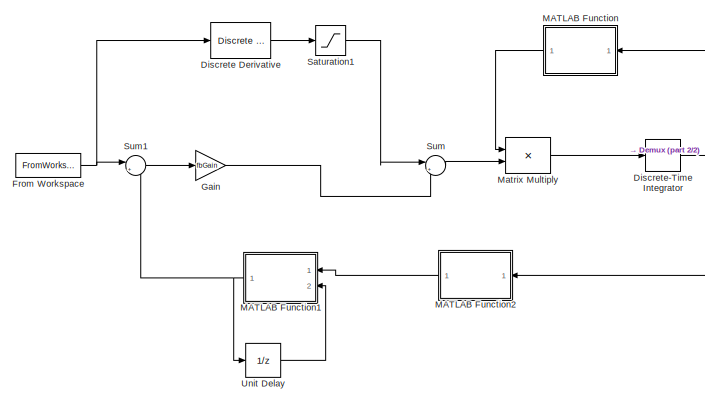
[diagram: root canvas - part 1/2, left side, full height]
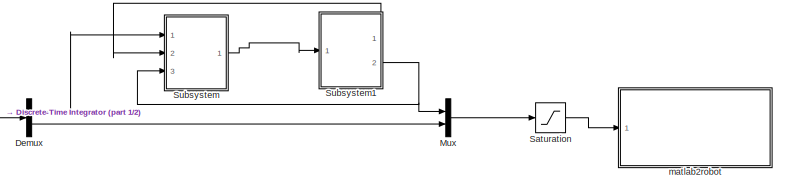
[diagram: root canvas - part 2/2, middle right region]
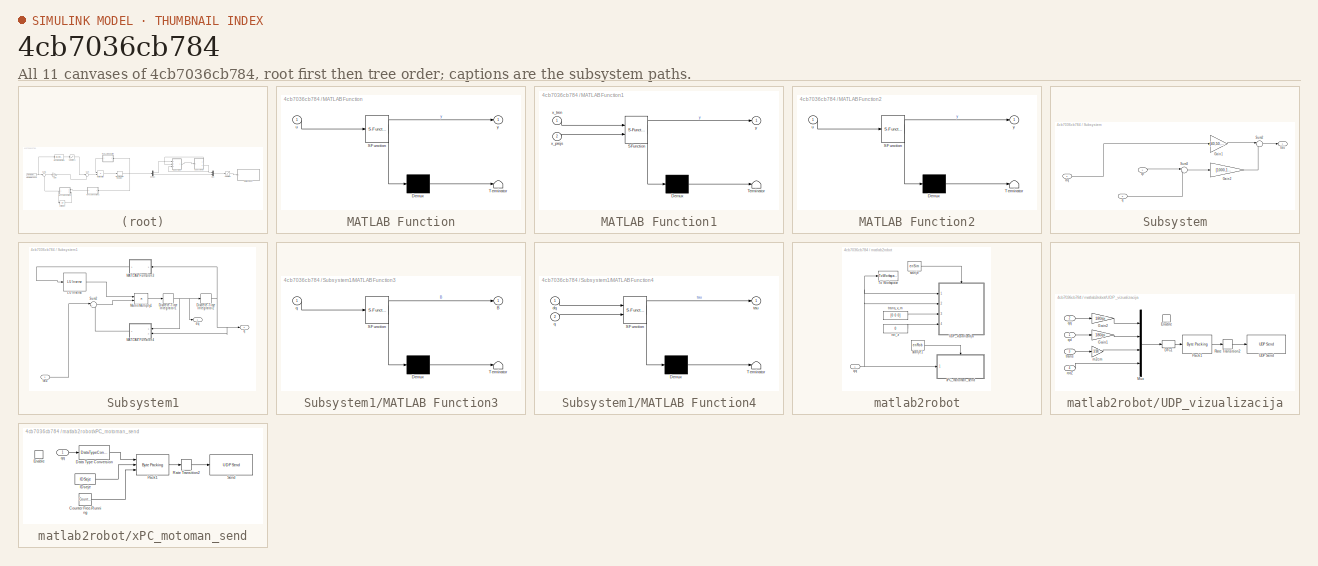
[diagram: thumbnail index - all 11 canvases of the model, root first then tree order]
MODEL slx_4cb7036cb784
KIND model
CONFIG AbsTol = auto
CONFIG EnableMultiTasking = on
CONFIG FixedStep = auto
CONFIG MaxStep = auto
CONFIG MinStep = auto
CONFIG RelTol = 1e-3
CONFIG SampleTimeConstraint = Unconstrained
CONFIG Solver = ode45
CONFIG SolverName = ode45
CONFIG StartTime = 0.0
CONFIG StopTime = 10.0
BLOCK [Demux] Demux
  DisplayOption = bar
  Outputs = 2
  Ports = [1, 2]
BLOCK [Reference] Discrete Derivative  REF=simulink/Discrete/Discrete Derivative
  Ports = [1, 1]
  SourceBlock = simulink/Discrete/Discrete Derivative
  SourceProductBaseCode = SL
  SourceProductName = Simulink
  SourceType = Discrete Derivative
BLOCK [DiscreteIntegrator] Discrete-Time Integrator
  ICPrevOutput = DiscIntNeverNeededParam
  ICPrevScaledInput = DiscIntNeverNeededParam
  InitialCondition = q0
  InitialConditionSetting = Auto
  Ports = [1, 1]
  SampleTime = dT
BLOCK [FromWorkspace] From Workspace
  SampleTime = 0
  VariableName = xTrajec
  ZeroCross = on
BLOCK [Gain] Gain
  Gain = fbGain
  OutDataTypeStr = Inherit: Inherit via internal rule
  ParamDataTypeStr = Inherit: Inherit via internal rule
  SaturateOnIntegerOverflow = off
BLOCK [SubSystem] MATLAB Function
  ErrorFcn = Stateflow.Translate.translate
  PermitHierarchicalResolution = ExplicitOnly
  Ports = [1, 1]
  RequestExecContextInheritance = off
  SFBlockType = MATLAB Function
  TreatAsAtomicUnit = on
BLOCK [Demux] MATLAB Function/ Demux 
  Outputs = 1
  Ports = [1, 1]
BLOCK [S-Function] MATLAB Function/ SFunction 
  EnableBusSupport = on
  FunctionName = sf_sfun
  PortCounts = [1 2]
  Ports = [1, 2]
  SFcnIsStateOwnerBlock = off
  SFunctionDeploymentMode = off
  Tag = Stateflow S-Function 2
BLOCK [Terminator] MATLAB Function/ Terminator 
BLOCK [Inport] MATLAB Function/u
  IconDisplay = Port number
BLOCK [Outport] MATLAB Function/y
  IconDisplay = Port number
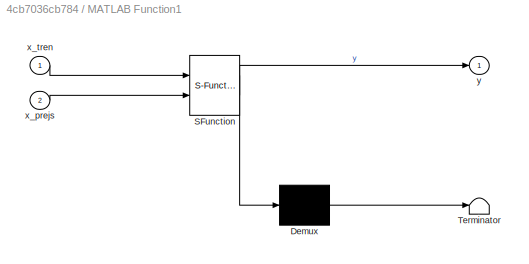
BLOCK [SubSystem] MATLAB Function1
  ErrorFcn = Stateflow.Translate.translate
  PermitHierarchicalResolution = ExplicitOnly
  Ports = [2, 1]
  RequestExecContextInheritance = off
  SFBlockType = MATLAB Function
  TreatAsAtomicUnit = on
BLOCK [Demux] MATLAB Function1/ Demux 
  Outputs = 1
  Ports = [1, 1]
BLOCK [S-Function] MATLAB Function1/ SFunction 
  EnableBusSupport = on
  FunctionName = sf_sfun
  PortCounts = [2 2]
  Ports = [2, 2]
  SFcnIsStateOwnerBlock = off
  SFunctionDeploymentMode = off
  Tag = Stateflow S-Function 1
BLOCK [Terminator] MATLAB Function1/ Terminator 
BLOCK [Inport] MATLAB Function1/x_prejs
  IconDisplay = Port number
  Port = 2
BLOCK [Inport] MATLAB Function1/x_tren
  IconDisplay = Port number
BLOCK [Outport] MATLAB Function1/y
  IconDisplay = Port number
BLOCK [SubSystem] MATLAB Function2
  ErrorFcn = Stateflow.Translate.translate
  PermitHierarchicalResolution = ExplicitOnly
  Ports = [1, 1]
  RequestExecContextInheritance = off
  SFBlockType = MATLAB Function
  TreatAsAtomicUnit = on
BLOCK [Demux] MATLAB Function2/ Demux 
  Outputs = 1
  Ports = [1, 1]
BLOCK [S-Function] MATLAB Function2/ SFunction 
  EnableBusSupport = on
  FunctionName = sf_sfun
  PortCounts = [1 2]
  Ports = [1, 2]
  SFcnIsStateOwnerBlock = off
  SFunctionDeploymentMode = off
  Tag = Stateflow S-Function 3
BLOCK [Terminator] MATLAB Function2/ Terminator 
BLOCK [Inport] MATLAB Function2/u
  IconDisplay = Port number
BLOCK [Outport] MATLAB Function2/y
  IconDisplay = Port number
BLOCK [Product] Matrix Multiply
  InputSameDT = off
  Multiplication = Matrix(*)
  OutDataTypeStr = Inherit: Inherit via internal rule
  Ports = [2, 1]
  RndMeth = Floor
  SaturateOnIntegerOverflow = off
BLOCK [Mux] Mux
  DisplayOption = bar
  Inputs = 2
  Ports = [2, 1]
BLOCK [Saturate] Saturation
  InputPortMap = u0
  LowerLimit = ([-94.5, -40, -75, -160, -120, -180]+5)*pi/180
  Ports = [1, 1]
  UpperLimit = ([94.5, 75, 45, 160, 120 180]-5)*pi/180
BLOCK [Saturate] Saturation1
  InputPortMap = u0
  Ports = [1, 1]
BLOCK [SubSystem] Subsystem
  Ports = [3, 1]
  RequestExecContextInheritance = off
BLOCK [Gain] Subsystem/Gain1
  Gain = [40,50,5]
  OutDataTypeStr = Inherit: Inherit via internal rule
  ParamDataTypeStr = Inherit: Inherit via internal rule
  SaturateOnIntegerOverflow = off
BLOCK [Gain] Subsystem/Gain2
  Gain = [1000,1500,100]
  OutDataTypeStr = Inherit: Inherit via internal rule
  ParamDataTypeStr = Inherit: Inherit via internal rule
  SaturateOnIntegerOverflow = off
BLOCK [Sum] Subsystem/Sum2
  IconShape = round
  InputSameDT = off
  Inputs = |-+
  OutDataTypeStr = Inherit: Inherit via internal rule
  Ports = [2, 1]
  SaturateOnIntegerOverflow = off
BLOCK [Sum] Subsystem/Sum3
  IconShape = round
  InputSameDT = off
  Inputs = |+-
  OutDataTypeStr = Inherit: Inherit via internal rule
  Ports = [2, 1]
  SaturateOnIntegerOverflow = off
BLOCK [Inport] Subsystem/dq 
  IconDisplay = Port number
  Port = 2
BLOCK [Inport] Subsystem/q
  IconDisplay = Port number
  Port = 3
BLOCK [Inport] Subsystem/qr
  IconDisplay = Port number
BLOCK [Outport] Subsystem/tau 
  IconDisplay = Port number
BLOCK [SubSystem] Subsystem1
  Ports = [1, 2]
  RequestExecContextInheritance = off
BLOCK [Reference] Subsystem1/ LU Inverse  REF=dspinverses/ LU Inverse
  Ports = [1, 1]
  SourceBlock = dspinverses/ LU Inverse
  SourceProductBaseCode = DS
  SourceProductName = DSP System Toolbox
  SourceType = LU Inverse
BLOCK [DiscreteIntegrator] Subsystem1/Discrete-Time Integrator1
  ICPrevOutput = DiscIntNeverNeededParam
  ICPrevScaledInput = DiscIntNeverNeededParam
  InitialCondition = [0 0 0]
  InitialConditionSetting = Auto
  Ports = [1, 1]
  SampleTime = dT
BLOCK [DiscreteIntegrator] Subsystem1/Discrete-Time Integrator2
  ICPrevOutput = DiscIntNeverNeededParam
  ICPrevScaledInput = DiscIntNeverNeededParam
  InitialCondition = q0(1:3)
  InitialConditionSetting = Auto
  Ports = [1, 1]
  SampleTime = dT
BLOCK [SubSystem] Subsystem1/MATLAB Function3
  ErrorFcn = Stateflow.Translate.translate
  PermitHierarchicalResolution = ExplicitOnly
  Ports = [1, 1]
  RequestExecContextInheritance = off
  SFBlockType = MATLAB Function
  TreatAsAtomicUnit = on
BLOCK [Demux] Subsystem1/MATLAB Function3/ Demux 
  Outputs = 1
  Ports = [1, 1]
BLOCK [S-Function] Subsystem1/MATLAB Function3/ SFunction 
  EnableBusSupport = on
  FunctionName = sf_sfun
  PortCounts = [1 2]
  Ports = [1, 2]
  SFcnIsStateOwnerBlock = off
  SFunctionDeploymentMode = off
  Tag = Stateflow S-Function 4
BLOCK [Terminator] Subsystem1/MATLAB Function3/ Terminator 
BLOCK [Outport] Subsystem1/MATLAB Function3/B
  IconDisplay = Port number
BLOCK [Inport] Subsystem1/MATLAB Function3/q
  IconDisplay = Port number
BLOCK [SubSystem] Subsystem1/MATLAB Function4
  ErrorFcn = Stateflow.Translate.translate
  PermitHierarchicalResolution = ExplicitOnly
  Ports = [2, 1]
  RequestExecContextInheritance = off
  SFBlockType = MATLAB Function
  TreatAsAtomicUnit = on
BLOCK [Demux] Subsystem1/MATLAB Function4/ Demux 
  Outputs = 1
  Ports = [1, 1]
BLOCK [S-Function] Subsystem1/MATLAB Function4/ SFunction 
  EnableBusSupport = on
  FunctionName = sf_sfun
  PortCounts = [2 2]
  Ports = [2, 2]
  SFcnIsStateOwnerBlock = off
  SFunctionDeploymentMode = off
  Tag = Stateflow S-Function 5
BLOCK [Terminator] Subsystem1/MATLAB Function4/ Terminator 
BLOCK [Inport] Subsystem1/MATLAB Function4/dq
  IconDisplay = Port number
BLOCK [Inport] Subsystem1/MATLAB Function4/q
  IconDisplay = Port number
  Port = 2
BLOCK [Outport] Subsystem1/MATLAB Function4/tau
  IconDisplay = Port number
BLOCK [Product] Subsystem1/Matrix Multiply1
  InputSameDT = off
  Multiplication = Matrix(*)
  OutDataTypeStr = Inherit: Inherit via internal rule
  Ports = [2, 1]
  RndMeth = Floor
  SaturateOnIntegerOverflow = off
BLOCK [Sum] Subsystem1/Sum2
  IconShape = round
  InputSameDT = off
  Inputs = |+-
  OutDataTypeStr = Inherit: Inherit via internal rule
  Ports = [2, 1]
  SaturateOnIntegerOverflow = off
BLOCK [Outport] Subsystem1/dq
  IconDisplay = Port number
BLOCK [Outport] Subsystem1/q
  IconDisplay = Port number
  Port = 2
BLOCK [Inport] Subsystem1/tau
  IconDisplay = Port number
BLOCK [Sum] Sum
  IconShape = round
  InputSameDT = off
  Inputs = |++
  OutDataTypeStr = Inherit: Inherit via internal rule
  Ports = [2, 1]
  SaturateOnIntegerOverflow = off
BLOCK [Sum] Sum1
  IconShape = round
  InputSameDT = off
  Inputs = |+-
  OutDataTypeStr = Inherit: Inherit via internal rule
  Ports = [2, 1]
  SaturateOnIntegerOverflow = off
BLOCK [UnitDelay] Unit Delay
  HasFrameUpgradeWarning = on
  InitialCondition = q2ZYXeul(q0)
  SampleTime = -1
BLOCK [SubSystem] matlab2robot
  Ports = [1]
  RequestExecContextInheritance = off
BLOCK [ToWorkspace] matlab2robot/To Workspace
  MaxDataPoints = inf
  Ports = [1]
  SampleTime = -1
  VariableName = qq
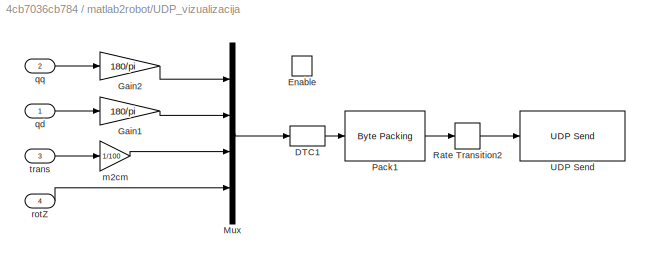
BLOCK [SubSystem] matlab2robot/UDP_vizualizacija
  Ports = [4, 0, 1]
  RequestExecContextInheritance = off
BLOCK [DataTypeConversion] matlab2robot/UDP_vizualizacija/DTC1
  OutDataTypeStr = single
  RndMeth = Floor
  SaturateOnIntegerOverflow = off
BLOCK [EnablePort] matlab2robot/UDP_vizualizacija/Enable
  Ports = []
  StatesWhenEnabling = reset
BLOCK [Gain] matlab2robot/UDP_vizualizacija/Gain1
  Gain = 180/pi
  OutDataTypeStr = Inherit: Inherit via internal rule
  ParamDataTypeStr = Inherit: Inherit via internal rule
  SaturateOnIntegerOverflow = off
BLOCK [Gain] matlab2robot/UDP_vizualizacija/Gain2
  Gain = 180/pi
  OutDataTypeStr = Inherit: Inherit via internal rule
  ParamDataTypeStr = Inherit: Inherit via internal rule
  SaturateOnIntegerOverflow = off
BLOCK [Mux] matlab2robot/UDP_vizualizacija/Mux
  DisplayOption = bar
  Ports = [4, 1]
BLOCK [Reference] matlab2robot/UDP_vizualizacija/Pack1  REF=xpcutilitieslib/Byte Packing 
  Ports = [1, 1]
  SourceBlock = xpcutilitieslib/Byte Packing
  SourceProductBaseCode = XP
  SourceProductName = Simulink Real-Time
  SourceType = xpcbytepacking
BLOCK [RateTransition] matlab2robot/UDP_vizualizacija/Rate Transition2
BLOCK [Reference] matlab2robot/UDP_vizualizacija/UDP Send  REF=dspnetwork/UDP Send
  Ports = [1]
  SourceBlock = dspnetwork/UDP Send
  SourceProductBaseCode = SL
  SourceProductName = Simulink
  SourceType = UDP Send
BLOCK [Gain] matlab2robot/UDP_vizualizacija/m2cm
  Gain = 1/100
  OutDataTypeStr = Inherit: Inherit via internal rule
  ParamDataTypeStr = Inherit: Inherit via internal rule
  SaturateOnIntegerOverflow = off
BLOCK [Inport] matlab2robot/UDP_vizualizacija/qd
  IconDisplay = Port number
BLOCK [Inport] matlab2robot/UDP_vizualizacija/qq
  IconDisplay = Port number
  Port = 2
BLOCK [Inport] matlab2robot/UDP_vizualizacija/rotZ
  IconDisplay = Port number
  Port = 4
BLOCK [Inport] matlab2robot/UDP_vizualizacija/trans
  IconDisplay = Port number
  Port = 3
BLOCK [Inport] matlab2robot/qq
  IconDisplay = Port number
BLOCK [Constant] matlab2robot/rot_z
  Value = 0
BLOCK [Constant] matlab2robot/stanje
  SampleTime = dT
  Value = enSim
BLOCK [Constant] matlab2robot/stanje1
  SampleTime = dT
  Value = enRob
BLOCK [Constant] matlab2robot/trans_v_m
  Value = [0 0 0]
BLOCK [SubSystem] matlab2robot/xPC_motoman_send
  Ports = [1, 0, 1]
  RequestExecContextInheritance = off
BLOCK [Reference] matlab2robot/xPC_motoman_send/Counter Free-Running  REF=simulink/Sources/Counter
Free-Running
  Ports = [0, 1]
  SourceBlock = simulink/Sources/Counter\nFree-Running
  SourceProductBaseCode = SL
  SourceProductName = Simulink
  SourceType = Counter Free-Running
BLOCK [DataTypeConversion] matlab2robot/xPC_motoman_send/Data Type Conversion
  OutDataTypeStr = double
  RndMeth = Floor
  SampleTime = dT
  SaturateOnIntegerOverflow = off
BLOCK [EnablePort] matlab2robot/xPC_motoman_send/Enable
  Ports = []
  StatesWhenEnabling = reset
BLOCK [Constant] matlab2robot/xPC_motoman_send/IDseje
  SampleTime = dT
  Value = IDSeje
BLOCK [Reference] matlab2robot/xPC_motoman_send/Pack1  REF=xpcutilitieslib/Byte Packing 
  Ports = [3, 1]
  SourceBlock = xpcutilitieslib/Byte Packing
  SourceProductBaseCode = XP
  SourceProductName = Simulink Real-Time
  SourceType = xpcbytepacking
BLOCK [RateTransition] matlab2robot/xPC_motoman_send/Rate Transition2
BLOCK [Reference] matlab2robot/xPC_motoman_send/Send  REF=dspnetwork/UDP Send
  Ports = [1]
  SourceBlock = dspnetwork/UDP Send
  SourceProductBaseCode = SL
  SourceProductName = Simulink
  SourceType = UDP Send
BLOCK [Inport] matlab2robot/xPC_motoman_send/qq
  IconDisplay = Port number
LINE Demux:1 -> Subsystem:1
LINE Demux:2 -> Mux:2
LINE Discrete Derivative:1 -> Saturation1:1
NET Discrete-Time Integrator:1 -> Demux:1, MATLAB Function2:1, MATLAB Function:1
NET From Workspace:1 -> Discrete Derivative:1, Sum1:1
LINE Gain:1 -> Sum:2
NET MATLAB Function1:1 -> Sum1:2, Unit Delay:1
LINE MATLAB Function2:1 -> MATLAB Function1:1
LINE MATLAB Function:1 -> Matrix Multiply:1
LINE Matrix Multiply:1 -> Discrete-Time Integrator:1
LINE Mux:1 -> Saturation:1
LINE Saturation1:1 -> Sum:1
LINE Saturation:1 -> matlab2robot:1
LINE Subsystem/Gain1:1 -> Subsystem/Sum2:1
LINE Subsystem/Gain2:1 -> Subsystem/Sum2:2
LINE Subsystem/Sum2:1 -> Subsystem/tau :1
LINE Subsystem/Sum3:1 -> Subsystem/Gain2:1
LINE Subsystem/dq :1 -> Subsystem/Gain1:1
LINE Subsystem/q:1 -> Subsystem/Sum3:2
LINE Subsystem/qr:1 -> Subsystem/Sum3:1
LINE Subsystem1/ LU Inverse:1 -> Subsystem1/Matrix Multiply1:1
NET Subsystem1/Discrete-Time Integrator1:1 -> Subsystem1/Discrete-Time Integrator2:1, Subsystem1/MATLAB Function4:1, Subsystem1/dq:1
NET Subsystem1/Discrete-Time Integrator2:1 -> Subsystem1/MATLAB Function3:1, Subsystem1/MATLAB Function4:2, Subsystem1/q:1
LINE Subsystem1/MATLAB Function3:1 -> Subsystem1/ LU Inverse:1
LINE Subsystem1/MATLAB Function4:1 -> Subsystem1/Sum2:2
LINE Subsystem1/Matrix Multiply1:1 -> Subsystem1/Discrete-Time Integrator1:1
LINE Subsystem1/Sum2:1 -> Subsystem1/Matrix Multiply1:2
LINE Subsystem1/tau:1 -> Subsystem1/Sum2:1
LINE Subsystem1:1 -> Subsystem:2
NET Subsystem1:2 -> Mux:1, Subsystem:3
LINE Subsystem:1 -> Subsystem1:1
LINE Sum1:1 -> Gain:1
LINE Sum:1 -> Matrix Multiply:2
LINE Unit Delay:1 -> MATLAB Function1:2
LINE matlab2robot/UDP_vizualizacija/DTC1:1 -> matlab2robot/UDP_vizualizacija/Pack1:1
LINE matlab2robot/UDP_vizualizacija/Gain1:1 -> matlab2robot/UDP_vizualizacija/Mux:2
LINE matlab2robot/UDP_vizualizacija/Gain2:1 -> matlab2robot/UDP_vizualizacija/Mux:1
LINE matlab2robot/UDP_vizualizacija/Mux:1 -> matlab2robot/UDP_vizualizacija/DTC1:1
LINE matlab2robot/UDP_vizualizacija/Pack1:1 -> matlab2robot/UDP_vizualizacija/Rate Transition2:1
LINE matlab2robot/UDP_vizualizacija/Rate Transition2:1 -> matlab2robot/UDP_vizualizacija/UDP Send:1
LINE matlab2robot/UDP_vizualizacija/m2cm:1 -> matlab2robot/UDP_vizualizacija/Mux:3
LINE matlab2robot/UDP_vizualizacija/qd:1 -> matlab2robot/UDP_vizualizacija/Gain1:1
LINE matlab2robot/UDP_vizualizacija/qq:1 -> matlab2robot/UDP_vizualizacija/Gain2:1
LINE matlab2robot/UDP_vizualizacija/rotZ:1 -> matlab2robot/UDP_vizualizacija/Mux:4
LINE matlab2robot/UDP_vizualizacija/trans:1 -> matlab2robot/UDP_vizualizacija/m2cm:1
NET matlab2robot/qq:1 -> matlab2robot/To Workspace:1, matlab2robot/UDP_vizualizacija:1, matlab2robot/UDP_vizualizacija:2, matlab2robot/xPC_motoman_send:1
LINE matlab2robot/rot_z:1 -> matlab2robot/UDP_vizualizacija:4
LINE matlab2robot/stanje1:1 -> matlab2robot/xPC_motoman_send:enable
LINE matlab2robot/stanje:1 -> matlab2robot/UDP_vizualizacija:enable
LINE matlab2robot/trans_v_m:1 -> matlab2robot/UDP_vizualizacija:3
LINE matlab2robot/xPC_motoman_send/Counter Free-Running:1 -> matlab2robot/xPC_motoman_send/Pack1:3
LINE matlab2robot/xPC_motoman_send/Data Type Conversion:1 -> matlab2robot/xPC_motoman_send/Pack1:1
LINE matlab2robot/xPC_motoman_send/IDseje:1 -> matlab2robot/xPC_motoman_send/Pack1:2
LINE matlab2robot/xPC_motoman_send/Pack1:1 -> matlab2robot/xPC_motoman_send/Rate Transition2:1
LINE matlab2robot/xPC_motoman_send/Rate Transition2:1 -> matlab2robot/xPC_motoman_send/Send:1
LINE matlab2robot/xPC_motoman_send/qq:1 -> matlab2robot/xPC_motoman_send/Data Type Conversion:1
note: NET lines group one-source signal fan-out (src -> all destinations, sorted); 1:1 wires keep LINE
CHART MATLAB Function1 states=1 transitions=1
  STATE_LABEL 'eML_blk_kernel()'
  STATE_LABEL 'SCRIPT:\nfunction y = fcn(x_tren,x_prejs )\ny=x_tren;\nfor i = 4:6\n    if abs(x_tren(i) - x_prejs(i)) >= pi\n        y(i) = x_tren(i) - sign(x_tren(i) - x_prejs(i))*2*pi;\n    end\nend\n'
CHART MATLAB Function states=1 transitions=1
  STATE_LABEL 'eML_blk_kernel()'
  STATE_LABEL 'SCRIPT:\nfunction y = invJa(u)\n\ny = ijacZYXeul(u);\n'
CHART MATLAB Function2 states=1 transitions=1
  STATE_LABEL 'eML_blk_kernel()'
  STATE_LABEL 'SCRIPT:\nfunction y = dirkin(u)\n\ny = q2ZYXeul(u);\n'
CHART Subsystem1/MATLAB Function3 states=1 transitions=1
  STATE_LABEL 'eML_blk_kernel()'
  STATE_LABEL 'SCRIPT:\nfunction B = inertia(q)\n\nB = inertia3(q);\n'
CHART Subsystem1/MATLAB Function4 states=1 transitions=1
  STATE_LABEL 'eML_blk_kernel()'
  STATE_LABEL 'SCRIPT:\nfunction tau = tau(dq, q)\n\ntau = tau3_q_dq(dq, q);\n'
